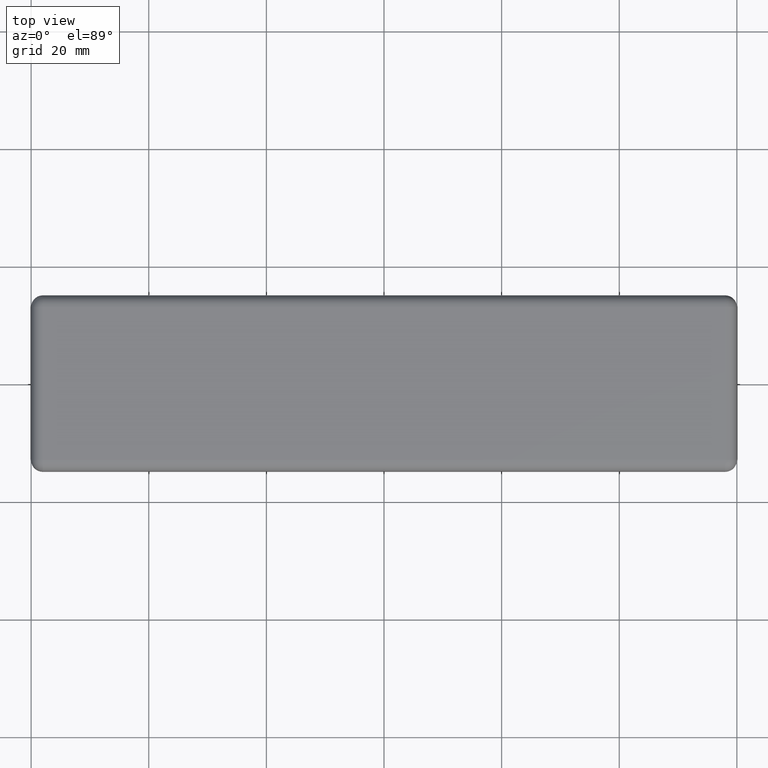
[diagram: clean part render]
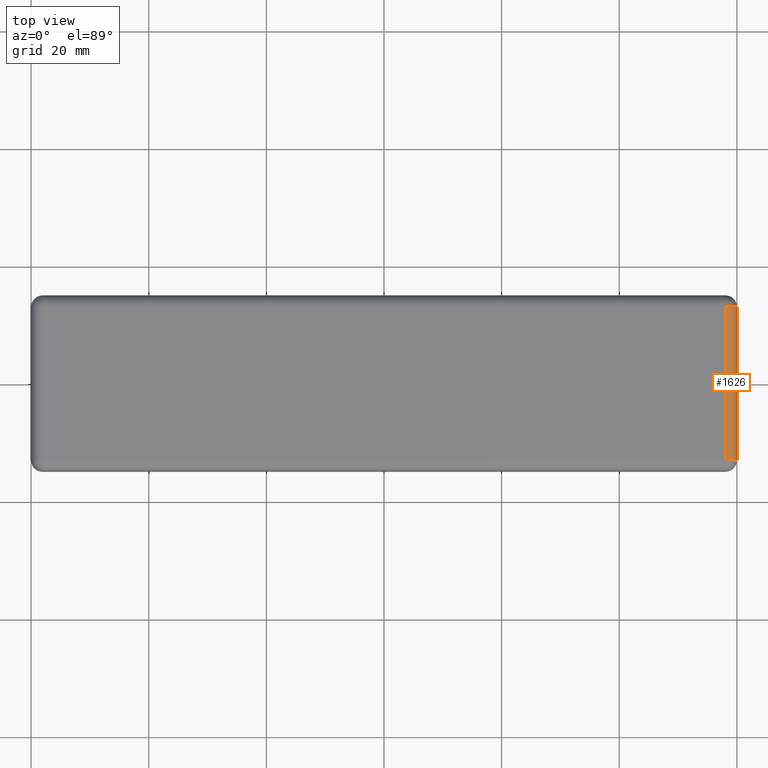
[diagram: same view with one face highlighted and labeled with its STEP entity id]
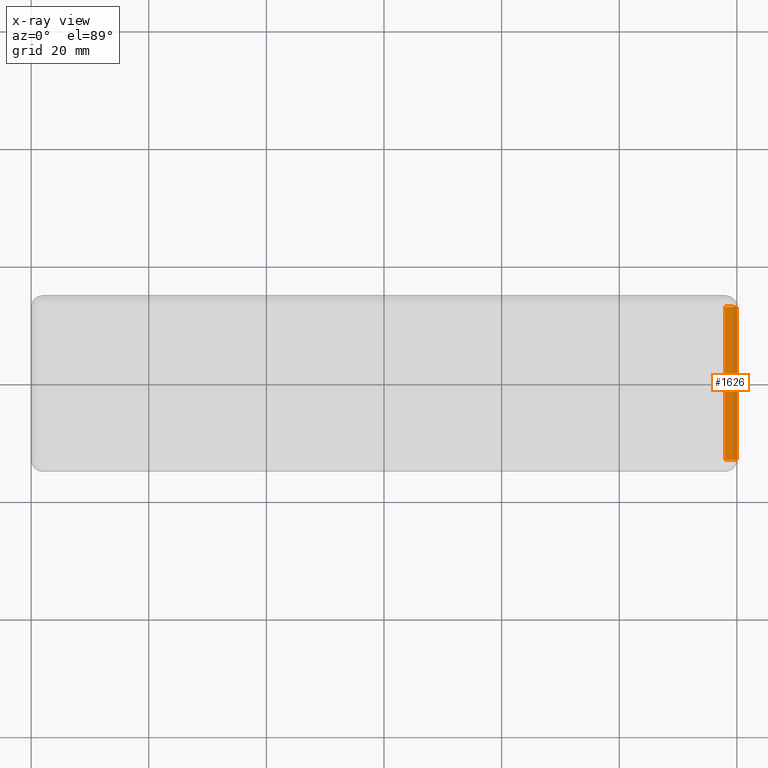
[diagram: x-ray of the same camera — body ghosted, the highlighted face saturated]
A machine part, top view. The second image highlights one B-rep face of the part: STEP entity #1626.
The next image is the same camera in x-ray: the body ghosted, the highlighted face saturated — about 0% of this face is hidden behind the body in this view.
In plain terms, the highlighted cylindrical surface (edge-blend (fillet) strip) has radius 2 mm, axis along (0, 1, 0).
Its self-contained STEP definition (entity closure, byte-faithful):
#21=CYLINDRICAL_SURFACE('',#1799,2.);
#195=FACE_OUTER_BOUND('',#290,.T.);
#290=EDGE_LOOP('',(#1474,#1475,#1476,#1477));
#396=LINE('',#2738,#524);
#420=LINE('',#2818,#548);
#524=VECTOR('',#2172,26.);
#548=VECTOR('',#2260,26.);
#624=CIRCLE('',#1782,2.);
#630=CIRCLE('',#1793,2.);
#764=VERTEX_POINT('',#2735);
#765=VERTEX_POINT('',#2737);
#779=VERTEX_POINT('',#2780);
#786=VERTEX_POINT('',#2804);
#984=EDGE_CURVE('',#765,#764,#396,.T.);
#1006=EDGE_CURVE('',#764,#779,#624,.F.);
#1017=EDGE_CURVE('',#786,#765,#630,.F.);
#1024=EDGE_CURVE('',#779,#786,#420,.T.);
#1474=ORIENTED_EDGE('',*,*,#1017,.T.);
#1475=ORIENTED_EDGE('',*,*,#984,.T.);
#1476=ORIENTED_EDGE('',*,*,#1006,.T.);
#1477=ORIENTED_EDGE('',*,*,#1024,.T.);
#1626=ADVANCED_FACE('',(#195),#21,.T.);
#1782=AXIS2_PLACEMENT_3D('',#2782,#2216,#2217);
#1793=AXIS2_PLACEMENT_3D('',#2805,#2243,#2244);
#1799=AXIS2_PLACEMENT_3D('',#2817,#2258,#2259);
#2172=DIRECTION('',(0.,-1.,0.));
#2216=DIRECTION('center_axis',(0.,-1.,0.));
#2217=DIRECTION('ref_axis',(0.,0.,1.));
#2243=DIRECTION('center_axis',(0.,1.,-2.22044604925031E-15));
#2244=DIRECTION('ref_axis',(1.,0.,0.));
#2258=DIRECTION('center_axis',(0.,1.,0.));
#2259=DIRECTION('ref_axis',(0.707106781186549,0.,0.707106781186546));
#2260=DIRECTION('',(0.,1.,0.));
#2735=CARTESIAN_POINT('',(58.,-13.,3.));
#2737=CARTESIAN_POINT('',(58.,13.,3.));
#2738=CARTESIAN_POINT('',(58.,-7.5,3.));
#2780=CARTESIAN_POINT('',(60.,-13.,1.));
#2782=CARTESIAN_POINT('Origin',(58.,-13.,1.));
#2804=CARTESIAN_POINT('',(60.,13.,1.));
#2805=CARTESIAN_POINT('Origin',(58.,13.,1.));
#2817=CARTESIAN_POINT('Origin',(58.,-7.5,1.));
#2818=CARTESIAN_POINT('',(60.,-7.5,1.));